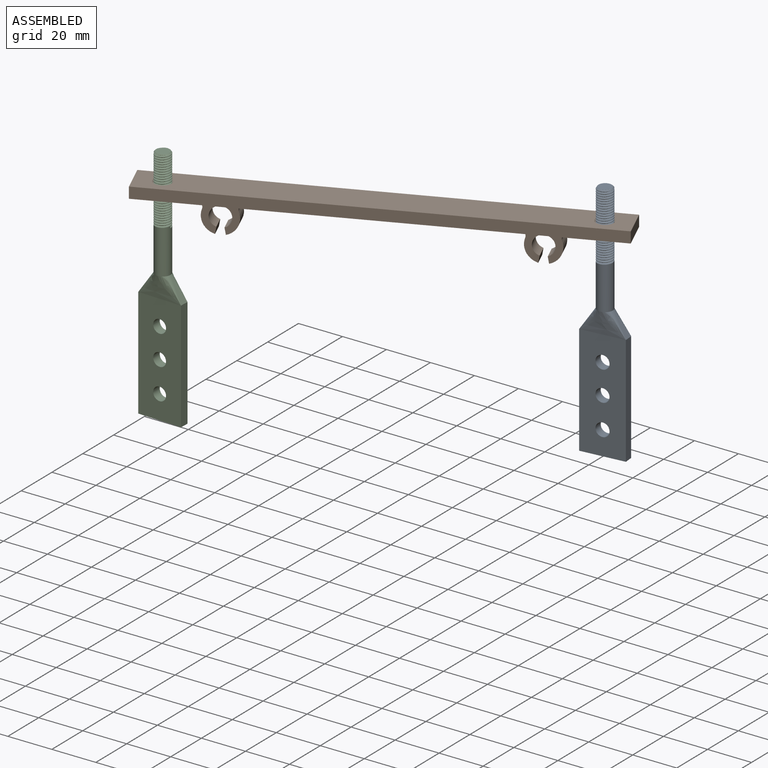
[diagram: assembled view]
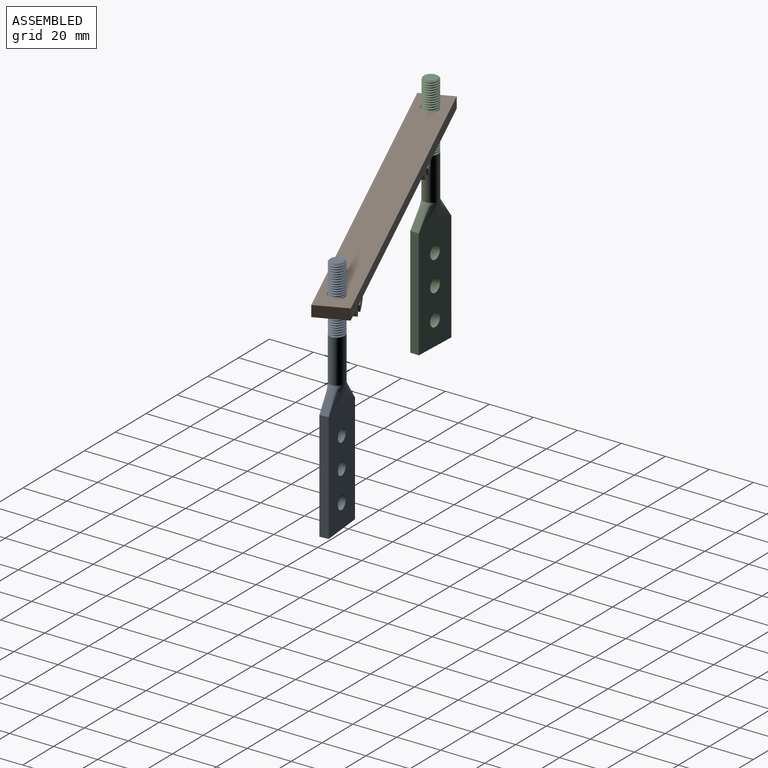
[diagram: assembled view, second angle]
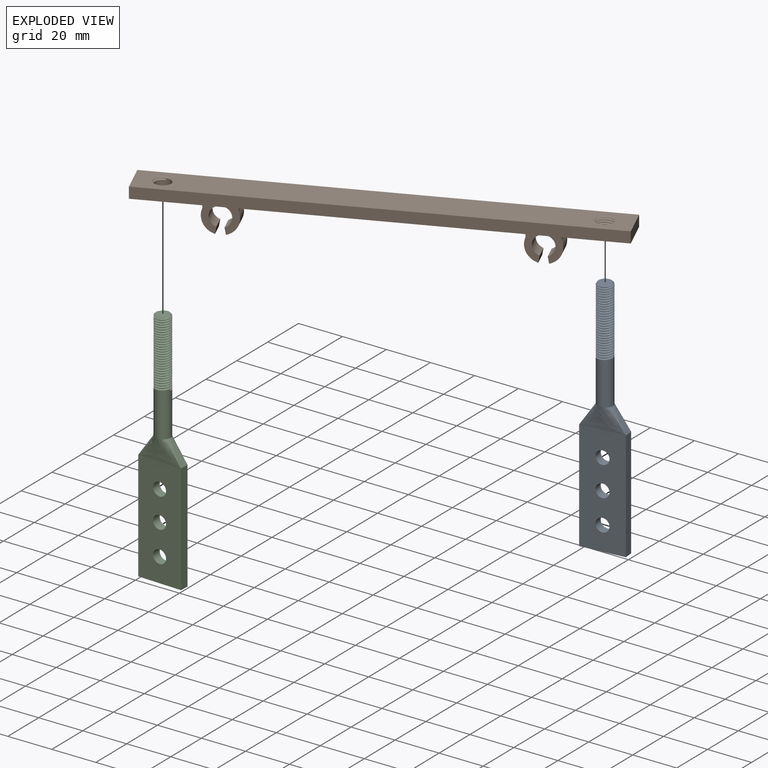
[diagram: exploded view]
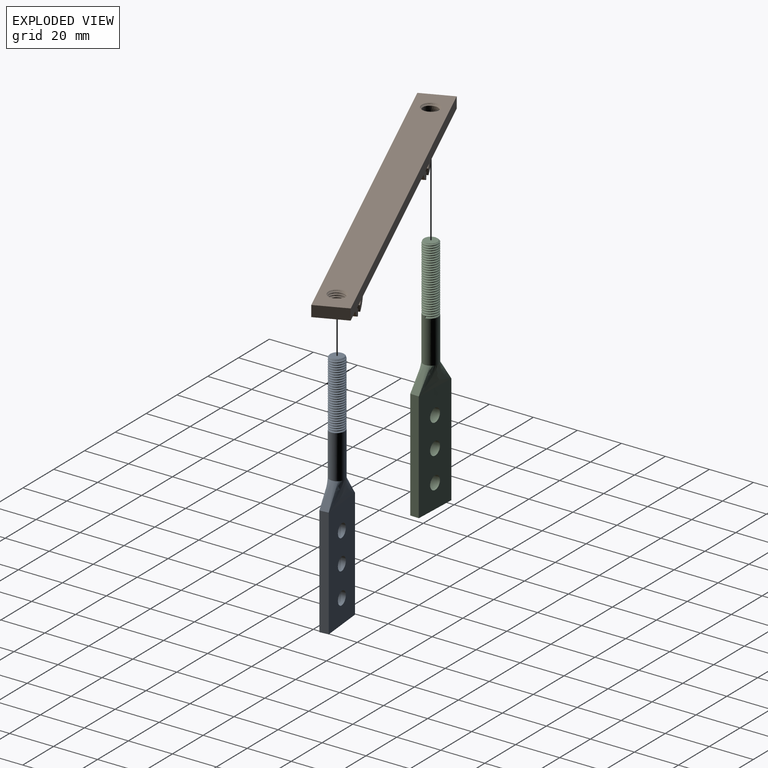
[diagram: exploded view, second angle]
ASSEMBLY  parts=3 mates=2
PART A: 47 faces, bbox 20x8.1x110.5 mm
  f0: plane 50x4mm, normal (-1,0,0), area 200mm2, adj f1,f6,f7,f46
  f1: plane 20x4mm, normal (0,0,-1), area 80mm2, adj f0,f5,f6,f7
  f2: cylinder r=3mm len=6mm, axis (0,1,0), area 75.4mm2, adj f6,f7
  f3: cylinder r=3mm len=6mm, axis (0,1,0), area 75.4mm2, adj f6,f7
  f4: cylinder r=3mm len=6mm, axis (0,1,0), area 75.4mm2, adj f6,f7
  f5: plane 50x4mm, normal (1,0,0), area 200mm2, adj f1,f6,f7,f44
  f6: plane 50x20mm, normal (0,-1,0), area 915.2mm2, adj f0,f1,f2,f3,f4,f5,f45
  f7: plane 50x20mm, normal (0,1,0), area 915.2mm2, adj f0,f1,f2,f3,f4,f5,f43
  f8: cylinder r=3.5mm len=20.7mm, axis (0,0,-1), area 435.4mm2, adj f37,f40,f41,f42,f43,f44,f45,f46
  f9: cylinder r=3.5mm len=7mm, axis (0,0,-1), area 4mm2, adj f10,f39,f41,f42
  f10: cylinder r=3.5mm len=7mm, axis (0,0,-1), area 4.4mm2, adj f9,f11,f41,f42
  f11: cylinder r=3.5mm len=7mm, axis (0,0,-1), area 4.4mm2, adj f10,f12,f41,f42
  f12: cylinder r=3.5mm len=7mm, axis (0,0,-1), area 4.4mm2, adj f11,f13,f41,f42
  f13: cylinder r=3.5mm len=7mm, axis (0,0,-1), area 4.4mm2, adj f12,f14,f41,f42
  f14: cylinder r=3.5mm len=7mm, axis (0,0,-1), area 4.4mm2, adj f13,f15,f41,f42
  f15: cylinder r=3.5mm len=7mm, axis (0,0,-1), area 4.4mm2, adj f14,f16,f41,f42
  f16: cylinder r=3.5mm len=7mm, axis (0,0,-1), area 4.4mm2, adj f15,f17,f41,f42
  f17: cylinder r=3.5mm len=7mm, axis (0,0,-1), area 4.4mm2, adj f16,f18,f41,f42
  f18: cylinder r=3.5mm len=7mm, axis (0,0,-1), area 4.4mm2, adj f17,f19,f41,f42
  f19: cylinder r=3.5mm len=7mm, axis (0,0,-1), area 4.4mm2, adj f18,f20,f41,f42
  f20: cylinder r=3.5mm len=7mm, axis (0,0,-1), area 4.4mm2, adj f19,f21,f41,f42
  f21: cylinder r=3.5mm len=7mm, axis (0,0,-1), area 4.4mm2, adj f20,f22,f41,f42
  f22: cylinder r=3.5mm len=7mm, axis (0,0,-1), area 4.4mm2, adj f21,f23,f41,f42
  f23: cylinder r=3.5mm len=7mm, axis (0,0,-1), area 4.4mm2, adj f22,f24,f41,f42
  f24: cylinder r=3.5mm len=7mm, axis (0,0,-1), area 4.4mm2, adj f23,f25,f41,f42
  f25: cylinder r=3.5mm len=7mm, axis (0,0,-1), area 4.4mm2, adj f24,f26,f41,f42
  f26: cylinder r=3.5mm len=7mm, axis (0,0,-1), area 4.4mm2, adj f25,f27,f41,f42
  f27: cylinder r=3.5mm len=7mm, axis (0,0,-1), area 4.4mm2, adj f26,f28,f41,f42
  f28: cylinder r=3.5mm len=7mm, axis (0,0,-1), area 4.4mm2, adj f27,f29,f41,f42
  f29: cylinder r=3.5mm len=7mm, axis (0,0,-1), area 4.4mm2, adj f28,f30,f41,f42
  f30: cylinder r=3.5mm len=7mm, axis (0,0,-1), area 4.4mm2, adj f29,f31,f41,f42
  f31: cylinder r=3.5mm len=7mm, axis (0,0,-1), area 4.4mm2, adj f30,f32,f41,f42
  f32: cylinder r=3.5mm len=7mm, axis (0,0,-1), area 4.4mm2, adj f31,f33,f41,f42
  f33: cylinder r=3.5mm len=7mm, axis (0,0,-1), area 4.4mm2, adj f32,f34,f41,f42
  f34: cylinder r=3.5mm len=7mm, axis (0,0,-1), area 4.4mm2, adj f33,f35,f41,f42
  f35: cylinder r=3.5mm len=7mm, axis (0,0,-1), area 4.4mm2, adj f34,f36,f41,f42
  f36: cylinder r=3.5mm len=7mm, axis (0,0,-1), area 4.4mm2, adj f35,f37,f41,f42
  f37: cylinder r=3.5mm len=7mm, axis (0,0,-1), area 4.4mm2, adj f8,f36,f41,f42
  f38: plane 6.03x6.02mm, normal (0,0,1), area 27.9mm2, adj f39,f41,f42
  f39: cone r=3mm half-angle=45deg, axis (0,0,-1), area 6.9mm2, adj f9,f38,f41,f42
  f40: plane 0.8x0.69mm, normal (0,1,0), area 0.3mm2, adj f8,f41,f42
  f41: bspline ~30.9x8.08mm, area 476mm2, adj f8,f9,f10,f11,f12,f13,f14,f15
  f42: bspline ~31.07x8.08mm, area 483.4mm2, adj f8,f9,f10,f11,f12,f13,f14,f15
  f43: bspline ~20x10mm, area 132.1mm2, adj f7,f8,f44,f46
  f44: bspline ~10x7.12mm, area 48.6mm2, adj f5,f8,f43,f45
  f45: bspline ~20x10mm, area 132.1mm2, adj f6,f8,f44,f46
  f46: bspline ~10x7.13mm, area 48.8mm2, adj f0,f8,f43,f45
PART B: 32 faces, bbox 29x205x32.7 mm
  f0: cylinder r=3.5mm len=7mm, axis (0,0,-1), area 106.4mm2, adj f20,f29,f30,f31
  f1: cylinder r=7.5mm len=9.8mm, axis (-1,0,0), area 86.3mm2, adj f3,f4,f6,f21
  f2: cylinder r=7.5mm len=9.8mm, axis (-1,0,0), area 86.3mm2, adj f3,f4,f7,f22
  f3: plane 18.85x13.21mm, normal (1,0,0), area 101.6mm2, adj f1,f2,f5,f6,f7,f20,f21,f22
  f4: plane 18.85x13.21mm, normal (-1,0,0), area 101.6mm2, adj f1,f2,f5,f6,f7,f20,f21,f22
  f5: cylinder r=4.5mm len=9mm, axis (-1,0,0), area 175.9mm2, adj f3,f4,f6,f7
  f6: plane 7x2.98mm, normal (0,-0.98,-0.17), area 21.2mm2, adj f1,f3,f4,f5
  f7: plane 7x2.98mm, normal (0,0.98,-0.17), area 21.2mm2, adj f2,f3,f4,f5
  f8: cylinder r=7.5mm len=9.8mm, axis (-1,0,0), area 86.3mm2, adj f10,f11,f13,f23
  f9: cylinder r=7.5mm len=9.8mm, axis (-1,0,0), area 86.3mm2, adj f10,f11,f14,f24
  f10: plane 18.85x13.21mm, normal (1,0,0), area 101.6mm2, adj f8,f9,f12,f13,f14,f20,f23,f24
  f11: plane 18.85x13.21mm, normal (-1,0,0), area 101.6mm2, adj f8,f9,f12,f13,f14,f20,f23,f24
  f12: cylinder r=4.5mm len=9mm, axis (-1,0,0), area 175.9mm2, adj f10,f11,f13,f14
  f13: plane 7x2.98mm, normal (0,-0.98,-0.17), area 21.2mm2, adj f8,f10,f11,f12
  f14: plane 7x2.98mm, normal (0,0.98,-0.17), area 21.2mm2, adj f9,f10,f11,f12
  f15: plane 191x5mm, normal (-1,0,0), area 955mm2, adj f16,f18,f19,f20
  f16: plane 15x5mm, normal (0,-1,0), area 75mm2, adj f15,f17,f19,f20
  f17: plane 191x5mm, normal (1,0,0), area 955mm2, adj f16,f18,f19,f20
  f18: plane 15x5mm, normal (0,1,0), area 75mm2, adj f15,f17,f19,f20
  f19: plane 191.09x15.09mm, normal (0,0,1), area 2763.4mm2, adj f15,f16,f17,f18,f26,f27,f28,f29
  f20: plane 205x29mm, normal (0,0,-1), area 2511.2mm2, adj f0,f3,f4,f10,f11,f15,f16,f17
  f21: cylinder r=2.54mm len=7mm, axis (-1,0,0), area 34.2mm2, adj f1,f3,f4,f20
  f22: cylinder r=2.54mm len=7mm, axis (-1,0,0), area 34.2mm2, adj f2,f3,f4,f20
  f23: cylinder r=2.54mm len=7mm, axis (-1,0,0), area 34.2mm2, adj f8,f10,f11,f20
  f24: cylinder r=2.54mm len=7mm, axis (-1,0,0), area 34.2mm2, adj f9,f10,f11,f20
  f25: cylinder r=3.5mm len=7mm, axis (0,0,-1), area 10.7mm2, adj f20,f26,f27,f28
  f26: cone r=3.5mm half-angle=45deg, axis (0,0,1), area 8.2mm2, adj f19,f25,f27,f28
  f27: bspline ~9.68x8.39mm, area 93.4mm2, adj f19,f20,f25,f26,f28
  f28: bspline ~8.36x8.31mm, area 93.5mm2, adj f19,f20,f25,f26,f27
  f29: cone r=3.5mm half-angle=45deg, axis (0,0,1), area 8.2mm2, adj f0,f19,f30,f31
  f30: bspline ~9.68x8.39mm, area 87.2mm2, adj f0,f19,f20,f29,f31
  f31: bspline ~8.38x8.37mm, area 93.4mm2, adj f0,f19,f20,f29,f30
PART C: same geometry as A
PLACE A rot(axis=(0,0,-1),174.3deg) t=(-91.8,-135.35,-14.01)mm
PLACE B rot(axis=(0,0,-1),66.9deg) t=(-169.24,-168.29,17.06)mm
PLACE C rot(axis=(0,0,-1),2.3deg) t=(-246.68,-201.24,-15.62)mm
MATE cylindrical A.f38 <-> B.f25  axis (0,0,1) through (-91.84,-135.33,35.99)mm
MATE cylindrical C.f38 <-> B.f0  axis (0,0,1) through (-246.65,-201.26,34.38)mm
